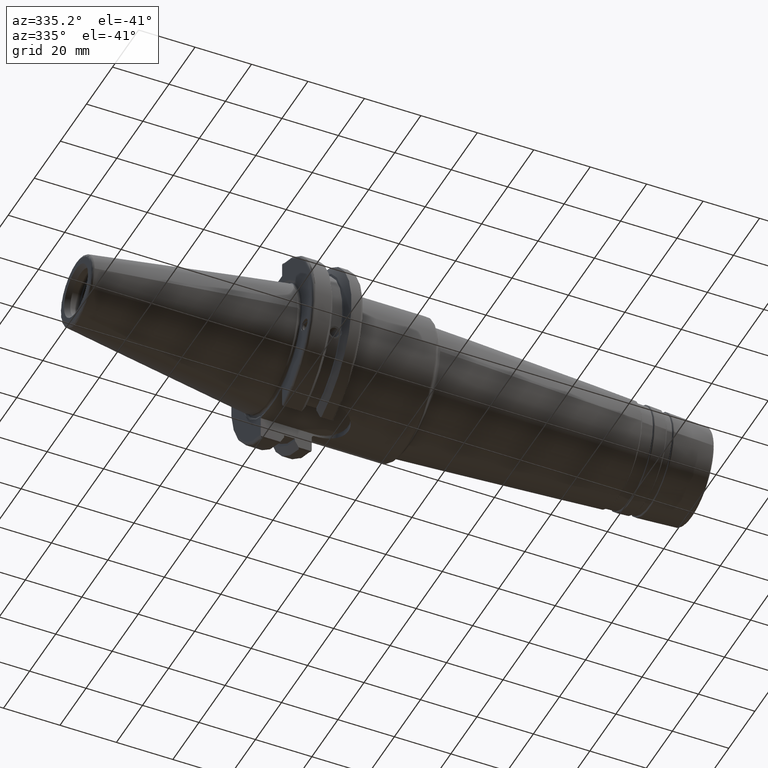
[diagram: clean part render]
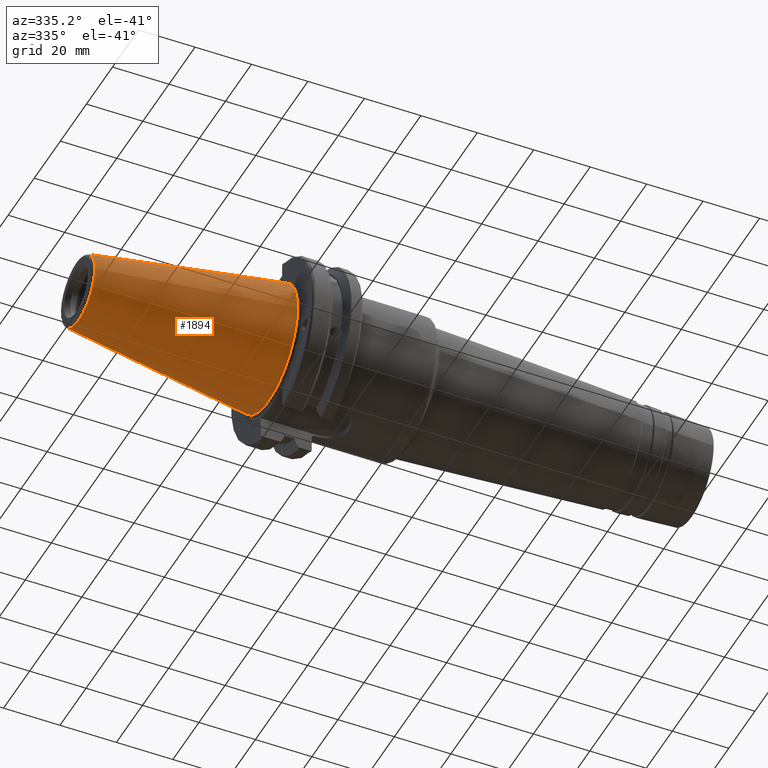
[diagram: same view with one face highlighted and labeled with its STEP entity id]
A machine part, auxiliary view. The second image highlights one B-rep face of the part: STEP entity #1894.
In plain terms, the highlighted conical surface has half-angle 8.297 deg.
Its self-contained STEP definition (entity closure, byte-faithful):
#246=LINE('',#3685,#339);
#339=VECTOR('',#2688,17.2484375);
#369=CONICAL_SURFACE('',#2149,17.2484375,0.144812498238939);
#453=FACE_OUTER_BOUND('',#571,.T.);
#571=EDGE_LOOP('',(#1658,#1659,#1660,#1661,#1662));
#706=CIRCLE('',#2143,12.3966635780937);
#707=CIRCLE('',#2144,12.3966635780937);
#711=CIRCLE('',#2150,22.225);
#904=VERTEX_POINT('',#3672);
#905=VERTEX_POINT('',#3673);
#908=VERTEX_POINT('',#3683);
#1172=EDGE_CURVE('',#904,#905,#706,.T.);
#1173=EDGE_CURVE('',#905,#904,#707,.T.);
#1177=EDGE_CURVE('',#908,#908,#711,.T.);
#1178=EDGE_CURVE('',#908,#905,#246,.T.);
#1658=ORIENTED_EDGE('',*,*,#1177,.F.);
#1659=ORIENTED_EDGE('',*,*,#1178,.T.);
#1660=ORIENTED_EDGE('',*,*,#1172,.F.);
#1661=ORIENTED_EDGE('',*,*,#1173,.F.);
#1662=ORIENTED_EDGE('',*,*,#1178,.F.);
#1894=ADVANCED_FACE('',(#453),#369,.T.);
#2143=AXIS2_PLACEMENT_3D('',#3674,#2672,#2673);
#2144=AXIS2_PLACEMENT_3D('',#3675,#2674,#2675);
#2149=AXIS2_PLACEMENT_3D('',#3682,#2684,#2685);
#2150=AXIS2_PLACEMENT_3D('',#3684,#2686,#2687);
#2672=DIRECTION('center_axis',(-1.,0.,0.));
#2673=DIRECTION('ref_axis',(0.,-1.,3.06161699786838E-17));
#2674=DIRECTION('center_axis',(-1.,0.,0.));
#2675=DIRECTION('ref_axis',(0.,-1.,3.06161699786838E-17));
#2684=DIRECTION('center_axis',(1.,0.,0.));
#2685=DIRECTION('ref_axis',(0.,1.,0.));
#2686=DIRECTION('center_axis',(1.,0.,0.));
#2687=DIRECTION('ref_axis',(0.,0.,-1.));
#2688=DIRECTION('',(-0.989532981063282,0.144306893071729,1.76724974695192E-17));
#3672=CARTESIAN_POINT('',(-67.3943068930717,-1.5181534371019E-15,12.3966635780937));
#3673=CARTESIAN_POINT('',(-67.3943068930718,-12.3966635780937,-1.5181534371019E-15));
#3674=CARTESIAN_POINT('Origin',(-67.3943068930717,0.,-1.89769179637738E-15));
#3675=CARTESIAN_POINT('Origin',(-67.3943068930717,0.,-1.89769179637738E-15));
#3682=CARTESIAN_POINT('Origin',(-34.125,0.,0.));
#3683=CARTESIAN_POINT('',(0.,-22.225,-2.72177751110499E-15));
#3684=CARTESIAN_POINT('Origin',(0.,0.,0.));
#3685=CARTESIAN_POINT('',(-34.125,-17.2484375,-2.11232437746682E-15));